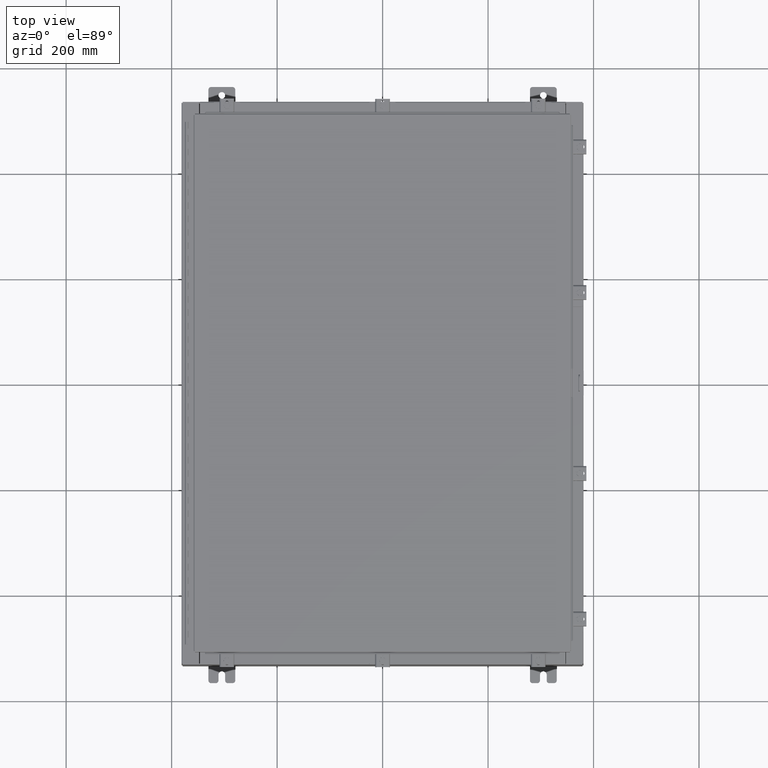
[diagram: clean part render]
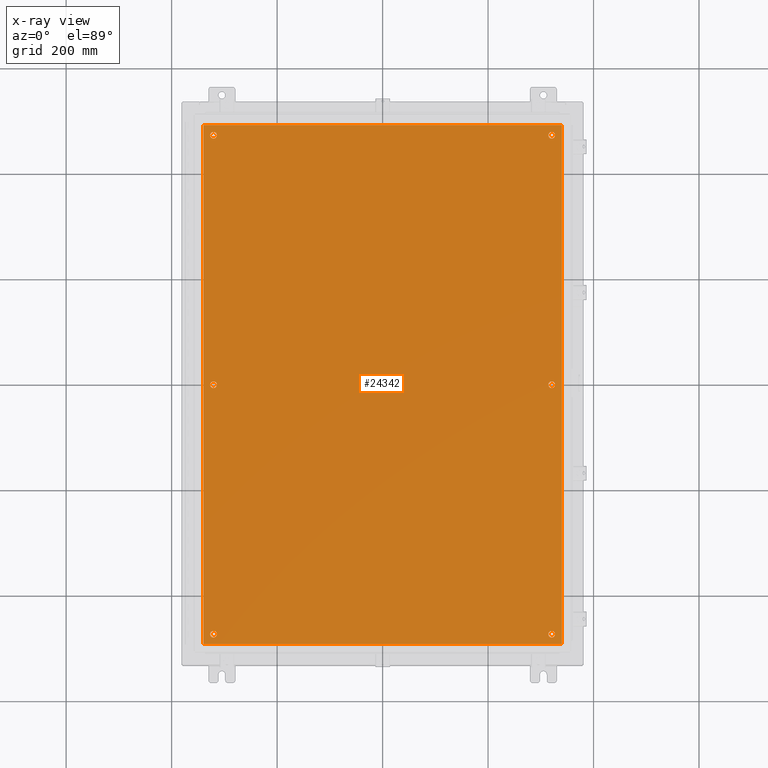
[diagram: x-ray — body ghosted, one internal face saturated and labeled with its STEP entity id]
A machine part, top view, then the same camera in x-ray: the body is ghosted and one INTERNAL B-rep face — a face not visible from any outside direction — is saturated and labeled: STEP entity #24342.
In plain terms, the highlighted planar face has unit normal (0, 0, -1).
Its self-contained STEP definition (entity closure, byte-faithful):
#197 = DIRECTION ( 'NONE',  ( -0.0000000000000000000, -0.0000000000000000000, 1.000000000000000000 ) ) ;
#223 = DIRECTION ( 'NONE',  ( -0.0000000000000000000, -0.0000000000000000000, 1.000000000000000000 ) ) ;
#1470 = AXIS2_PLACEMENT_3D ( 'NONE', #12534, #223, #31160 ) ;
#1771 = ORIENTED_EDGE ( 'NONE', *, *, #27316, .T. ) ;
#1782 = AXIS2_PLACEMENT_3D ( 'NONE', #6698, #32902, #10474 ) ;
#1921 = CARTESIAN_POINT ( 'NONE',  ( -12.37500000000000400, 18.62499999999999600, -0.1039999999999999800 ) ) ;
#2614 = CARTESIAN_POINT ( 'NONE',  ( -13.38300000000000300, 19.38299999999999200, -0.1040000000000041900 ) ) ;
#3003 = FACE_BOUND ( 'NONE', #12449, .T. ) ;
#3150 = CARTESIAN_POINT ( 'NONE',  ( -13.38300000000000300, -19.38300000000000300, -0.1040000000000009100 ) ) ;
#3254 = DIRECTION ( 'NONE',  ( -1.000000000000000000, 0.0000000000000000000, 0.0000000000000000000 ) ) ;
#3573 = VERTEX_POINT ( 'NONE', #3150 ) ;
#4078 = VERTEX_POINT ( 'NONE', #45659 ) ;
#4132 = DIRECTION ( 'NONE',  ( -0.0000000000000000000, -0.0000000000000000000, 1.000000000000000000 ) ) ;
#4287 = EDGE_CURVE ( 'NONE', #20663, #45261, #23349, .T. ) ;
#5240 = FACE_BOUND ( 'NONE', #20908, .T. ) ;
#5548 = LINE ( 'NONE', #46534, #24272 ) ;
#5670 = ORIENTED_EDGE ( 'NONE', *, *, #45126, .T. ) ;
#5904 = DIRECTION ( 'NONE',  ( -1.000000000000000000, 0.0000000000000000000, 0.0000000000000000000 ) ) ;
#6224 = CARTESIAN_POINT ( 'NONE',  ( 12.87500000000000400, 2.262348282635109500E-015, -0.1039999999999999800 ) ) ;
#6280 = ORIENTED_EDGE ( 'NONE', *, *, #38273, .F. ) ;
#6698 = CARTESIAN_POINT ( 'NONE',  ( -12.62500000000000200, -8.298848852119578500E-016, -0.1039999999999999800 ) ) ;
#6894 = EDGE_CURVE ( 'NONE', #10477, #4078, #24434, .T. ) ;
#7491 = VERTEX_POINT ( 'NONE', #33228 ) ;
#8166 = AXIS2_PLACEMENT_3D ( 'NONE', #41977, #9143, #5904 ) ;
#8662 = CARTESIAN_POINT ( 'NONE',  ( 12.87500000000000500, 18.62499999999999600, -0.1039999999999999800 ) ) ;
#9143 = DIRECTION ( 'NONE',  ( -0.0000000000000000000, -0.0000000000000000000, 1.000000000000000000 ) ) ;
#9642 = ORIENTED_EDGE ( 'NONE', *, *, #23657, .F. ) ;
#9889 = VERTEX_POINT ( 'NONE', #22140 ) ;
#10474 = DIRECTION ( 'NONE',  ( -1.000000000000000000, 0.0000000000000000000, 0.0000000000000000000 ) ) ;
#10477 = VERTEX_POINT ( 'NONE', #6224 ) ;
#10682 = DIRECTION ( 'NONE',  ( -1.000000000000000000, 0.0000000000000000000, 0.0000000000000000000 ) ) ;
#10891 = LINE ( 'NONE', #26931, #15420 ) ;
#10920 = AXIS2_PLACEMENT_3D ( 'NONE', #46425, #46279, #45880 ) ;
#11194 = VERTEX_POINT ( 'NONE', #29444 ) ;
#11747 = VECTOR ( 'NONE', #21754, 39.37007874015748100 ) ;
#12087 = EDGE_CURVE ( 'NONE', #19261, #45089, #10891, .T. ) ;
#12263 = CARTESIAN_POINT ( 'NONE',  ( -13.50000000000000000, -19.38300000000000300, -0.1040000000000009100 ) ) ;
#12441 = DIRECTION ( 'NONE',  ( -0.0000000000000000000, -0.0000000000000000000, 1.000000000000000000 ) ) ;
#12449 = EDGE_LOOP ( 'NONE', ( #21329, #37553 ) ) ;
#12534 = CARTESIAN_POINT ( 'NONE',  ( -12.62500000000000400, 18.62499999999999600, -0.1039999999999999800 ) ) ;
#12775 = FACE_BOUND ( 'NONE', #19224, .T. ) ;
#12948 = CIRCLE ( 'NONE', #43077, 0.2500000000000008900 ) ;
#13236 = DIRECTION ( 'NONE',  ( -1.000000000000000000, 0.0000000000000000000, -0.0000000000000000000 ) ) ;
#14275 = CIRCLE ( 'NONE', #42923, 0.2500000000000008900 ) ;
#15043 = CARTESIAN_POINT ( 'NONE',  ( -12.87500000000000500, -18.62499999999999600, -0.1039999999999999800 ) ) ;
#15134 = CARTESIAN_POINT ( 'NONE',  ( -12.87500000000000400, -7.992687152332741600E-016, -0.1039999999999999800 ) ) ;
#15420 = VECTOR ( 'NONE', #36637, 39.37007874015748100 ) ;
#16745 = AXIS2_PLACEMENT_3D ( 'NONE', #38506, #46816, #47428 ) ;
#17690 = CARTESIAN_POINT ( 'NONE',  ( -12.62500000000000400, 18.62499999999999600, -0.1039999999999999800 ) ) ;
#18493 = DIRECTION ( 'NONE',  ( 0.0000000000000000000, 0.0000000000000000000, -1.000000000000000000 ) ) ;
#18772 = VERTEX_POINT ( 'NONE', #37672 ) ;
#19224 = EDGE_LOOP ( 'NONE', ( #1771, #33086 ) ) ;
#19261 = VERTEX_POINT ( 'NONE', #40443 ) ;
#19312 = EDGE_CURVE ( 'NONE', #4078, #10477, #28343, .T. ) ;
#19444 = EDGE_CURVE ( 'NONE', #27114, #29899, #39885, .T. ) ;
#19814 = EDGE_CURVE ( 'NONE', #18772, #24992, #32351, .T. ) ;
#20368 = EDGE_CURVE ( 'NONE', #7491, #9889, #37464, .T. ) ;
#20663 = VERTEX_POINT ( 'NONE', #1921 ) ;
#20908 = EDGE_LOOP ( 'NONE', ( #47640, #39766 ) ) ;
#21303 = ORIENTED_EDGE ( 'NONE', *, *, #38568, .T. ) ;
#21329 = ORIENTED_EDGE ( 'NONE', *, *, #4287, .T. ) ;
#21574 = DIRECTION ( 'NONE',  ( -1.000000000000000000, 0.0000000000000000000, 0.0000000000000000000 ) ) ;
#21656 = CARTESIAN_POINT ( 'NONE',  ( -12.37500000000000200, -8.298848852119578500E-016, -0.1039999999999999800 ) ) ;
#21754 = DIRECTION ( 'NONE',  ( 1.000000000000000000, -0.0000000000000000000, -0.0000000000000000000 ) ) ;
#22076 = AXIS2_PLACEMENT_3D ( 'NONE', #45189, #40366, #10682 ) ;
#22140 = CARTESIAN_POINT ( 'NONE',  ( 12.87500000000000500, -18.62499999999999600, -0.1039999999999999800 ) ) ;
#22332 = CARTESIAN_POINT ( 'NONE',  ( -12.62500000000000200, -8.298848852119578500E-016, -0.1039999999999999800 ) ) ;
#22364 = VERTEX_POINT ( 'NONE', #21656 ) ;
#22431 = CARTESIAN_POINT ( 'NONE',  ( -12.37500000000000400, -18.62499999999999600, -0.1039999999999999800 ) ) ;
#23328 = DIRECTION ( 'NONE',  ( -1.000000000000000000, 0.0000000000000000000, 0.0000000000000000000 ) ) ;
#23349 = CIRCLE ( 'NONE', #1470, 0.2500000000000008900 ) ;
#23512 = EDGE_CURVE ( 'NONE', #3573, #11194, #41568, .T. ) ;
#23657 = EDGE_CURVE ( 'NONE', #11194, #19261, #34590, .T. ) ;
#24272 = VECTOR ( 'NONE', #28020, 39.37007874015748100 ) ;
#24342 = ADVANCED_FACE ( 'NONE', ( #33950, #42642, #32784, #5240, #12775, #3003, #41474 ), #35522, .T. ) ;
#24434 = CIRCLE ( 'NONE', #10920, 0.2500000000000008900 ) ;
#24992 = VERTEX_POINT ( 'NONE', #8662 ) ;
#25630 = DIRECTION ( 'NONE',  ( -0.0000000000000000000, -0.0000000000000000000, 1.000000000000000000 ) ) ;
#26178 = DIRECTION ( 'NONE',  ( -1.000000000000000000, 0.0000000000000000000, 0.0000000000000000000 ) ) ;
#26423 = EDGE_LOOP ( 'NONE', ( #41467, #30790 ) ) ;
#26544 = CARTESIAN_POINT ( 'NONE',  ( 12.62500000000000400, -18.62499999999999600, -0.1039999999999999800 ) ) ;
#26612 = CIRCLE ( 'NONE', #1782, 0.2500000000000008900 ) ;
#26931 = CARTESIAN_POINT ( 'NONE',  ( 13.50000000000000000, 19.38299999999999200, -0.1040000000000009100 ) ) ;
#27114 = VERTEX_POINT ( 'NONE', #22431 ) ;
#27174 = ORIENTED_EDGE ( 'NONE', *, *, #38767, .T. ) ;
#27316 = EDGE_CURVE ( 'NONE', #24992, #18772, #12948, .T. ) ;
#28020 = DIRECTION ( 'NONE',  ( 0.0000000000000000000, -1.000000000000000000, 0.0000000000000000000 ) ) ;
#28343 = CIRCLE ( 'NONE', #47016, 0.2500000000000008900 ) ;
#29444 = CARTESIAN_POINT ( 'NONE',  ( 13.38299999999999900, -19.38299999999999900, -0.1040000000000009100 ) ) ;
#29619 = EDGE_LOOP ( 'NONE', ( #21303, #5670 ) ) ;
#29899 = VERTEX_POINT ( 'NONE', #15043 ) ;
#30334 = DIRECTION ( 'NONE',  ( -1.000000000000000000, 0.0000000000000000000, 0.0000000000000000000 ) ) ;
#30790 = ORIENTED_EDGE ( 'NONE', *, *, #19312, .T. ) ;
#31053 = CARTESIAN_POINT ( 'NONE',  ( 12.62500000000000200, 2.262348282635109500E-015, -0.1039999999999999800 ) ) ;
#31061 = EDGE_LOOP ( 'NONE', ( #31402, #6280, #41948, #9642 ) ) ;
#31160 = DIRECTION ( 'NONE',  ( -1.000000000000000000, 0.0000000000000000000, 0.0000000000000000000 ) ) ;
#31402 = ORIENTED_EDGE ( 'NONE', *, *, #23512, .F. ) ;
#32351 = CIRCLE ( 'NONE', #16745, 0.2500000000000008900 ) ;
#32784 = FACE_BOUND ( 'NONE', #41483, .T. ) ;
#32902 = DIRECTION ( 'NONE',  ( -0.0000000000000000000, -0.0000000000000000000, 1.000000000000000000 ) ) ;
#33086 = ORIENTED_EDGE ( 'NONE', *, *, #19814, .T. ) ;
#33228 = CARTESIAN_POINT ( 'NONE',  ( 12.37500000000000400, -18.62499999999999600, -0.1039999999999999800 ) ) ;
#33950 = FACE_BOUND ( 'NONE', #26423, .T. ) ;
#34590 = LINE ( 'NONE', #36443, #44456 ) ;
#34711 = CIRCLE ( 'NONE', #35195, 0.2500000000000008900 ) ;
#34927 = CARTESIAN_POINT ( 'NONE',  ( -12.62500000000000400, -18.62499999999999600, -0.1039999999999999800 ) ) ;
#35195 = AXIS2_PLACEMENT_3D ( 'NONE', #22332, #197, #26178 ) ;
#35522 = PLANE ( 'NONE',  #48075 ) ;
#36043 = CARTESIAN_POINT ( 'NONE',  ( 0.0000000000000000000, 0.0000000000000000000, -0.1039999999999999800 ) ) ;
#36443 = CARTESIAN_POINT ( 'NONE',  ( 13.38299999999999900, -19.38299999999999900, -0.1040000000000009100 ) ) ;
#36637 = DIRECTION ( 'NONE',  ( -1.000000000000000000, -0.0000000000000000000, -0.0000000000000000000 ) ) ;
#37464 = CIRCLE ( 'NONE', #22076, 0.2500000000000008900 ) ;
#37540 = CIRCLE ( 'NONE', #44192, 0.2500000000000008900 ) ;
#37553 = ORIENTED_EDGE ( 'NONE', *, *, #37852, .T. ) ;
#37672 = CARTESIAN_POINT ( 'NONE',  ( 12.37500000000000400, 18.62499999999999600, -0.1039999999999999800 ) ) ;
#37852 = EDGE_CURVE ( 'NONE', #45261, #20663, #14275, .T. ) ;
#38273 = EDGE_CURVE ( 'NONE', #45089, #3573, #5548, .T. ) ;
#38506 = CARTESIAN_POINT ( 'NONE',  ( 12.62500000000000400, 18.62499999999999600, -0.1039999999999999800 ) ) ;
#38568 = EDGE_CURVE ( 'NONE', #22364, #43069, #34711, .T. ) ;
#38602 = DIRECTION ( 'NONE',  ( -1.000000000000000000, 0.0000000000000000000, 0.0000000000000000000 ) ) ;
#38767 = EDGE_CURVE ( 'NONE', #29899, #27114, #37540, .T. ) ;
#39766 = ORIENTED_EDGE ( 'NONE', *, *, #20368, .T. ) ;
#39792 = EDGE_CURVE ( 'NONE', #9889, #7491, #44535, .T. ) ;
#39885 = CIRCLE ( 'NONE', #8166, 0.2500000000000008900 ) ;
#40366 = DIRECTION ( 'NONE',  ( -0.0000000000000000000, -0.0000000000000000000, 1.000000000000000000 ) ) ;
#40443 = CARTESIAN_POINT ( 'NONE',  ( 13.38299999999999900, 19.38299999999999200, -0.1040000000000009100 ) ) ;
#41320 = CARTESIAN_POINT ( 'NONE',  ( -12.87500000000000500, 18.62499999999999600, -0.1039999999999999800 ) ) ;
#41467 = ORIENTED_EDGE ( 'NONE', *, *, #6894, .T. ) ;
#41474 = FACE_OUTER_BOUND ( 'NONE', #31061, .T. ) ;
#41483 = EDGE_LOOP ( 'NONE', ( #46641, #27174 ) ) ;
#41568 = LINE ( 'NONE', #12263, #11747 ) ;
#41948 = ORIENTED_EDGE ( 'NONE', *, *, #12087, .F. ) ;
#41977 = CARTESIAN_POINT ( 'NONE',  ( -12.62500000000000400, -18.62499999999999600, -0.1039999999999999800 ) ) ;
#42460 = DIRECTION ( 'NONE',  ( -0.0000000000000000000, -0.0000000000000000000, 1.000000000000000000 ) ) ;
#42642 = FACE_BOUND ( 'NONE', #29619, .T. ) ;
#42923 = AXIS2_PLACEMENT_3D ( 'NONE', #17690, #43932, #21574 ) ;
#42981 = DIRECTION ( 'NONE',  ( 0.0000000000000000000, 1.000000000000000000, 0.0000000000000000000 ) ) ;
#43069 = VERTEX_POINT ( 'NONE', #15134 ) ;
#43077 = AXIS2_PLACEMENT_3D ( 'NONE', #48008, #25630, #3254 ) ;
#43932 = DIRECTION ( 'NONE',  ( -0.0000000000000000000, -0.0000000000000000000, 1.000000000000000000 ) ) ;
#44192 = AXIS2_PLACEMENT_3D ( 'NONE', #34927, #12441, #38602 ) ;
#44456 = VECTOR ( 'NONE', #42981, 39.37007874015748100 ) ;
#44535 = CIRCLE ( 'NONE', #44566, 0.2500000000000008900 ) ;
#44566 = AXIS2_PLACEMENT_3D ( 'NONE', #26544, #4132, #30334 ) ;
#45089 = VERTEX_POINT ( 'NONE', #2614 ) ;
#45126 = EDGE_CURVE ( 'NONE', #43069, #22364, #26612, .T. ) ;
#45189 = CARTESIAN_POINT ( 'NONE',  ( 12.62500000000000400, -18.62499999999999600, -0.1039999999999999800 ) ) ;
#45261 = VERTEX_POINT ( 'NONE', #41320 ) ;
#45659 = CARTESIAN_POINT ( 'NONE',  ( 12.37500000000000200, 2.292964452613793300E-015, -0.1039999999999999800 ) ) ;
#45880 = DIRECTION ( 'NONE',  ( -1.000000000000000000, 0.0000000000000000000, 0.0000000000000000000 ) ) ;
#46279 = DIRECTION ( 'NONE',  ( -0.0000000000000000000, -0.0000000000000000000, 1.000000000000000000 ) ) ;
#46425 = CARTESIAN_POINT ( 'NONE',  ( 12.62500000000000200, 2.262348282635109500E-015, -0.1039999999999999800 ) ) ;
#46534 = CARTESIAN_POINT ( 'NONE',  ( -13.38300000000000300, 19.38299999999999200, -0.1040000000000041900 ) ) ;
#46641 = ORIENTED_EDGE ( 'NONE', *, *, #19444, .T. ) ;
#46816 = DIRECTION ( 'NONE',  ( -0.0000000000000000000, -0.0000000000000000000, 1.000000000000000000 ) ) ;
#47016 = AXIS2_PLACEMENT_3D ( 'NONE', #31053, #42460, #23328 ) ;
#47428 = DIRECTION ( 'NONE',  ( -1.000000000000000000, 0.0000000000000000000, 0.0000000000000000000 ) ) ;
#47640 = ORIENTED_EDGE ( 'NONE', *, *, #39792, .T. ) ;
#48008 = CARTESIAN_POINT ( 'NONE',  ( 12.62500000000000400, 18.62499999999999600, -0.1039999999999999800 ) ) ;
#48075 = AXIS2_PLACEMENT_3D ( 'NONE', #36043, #18493, #13236 ) ;